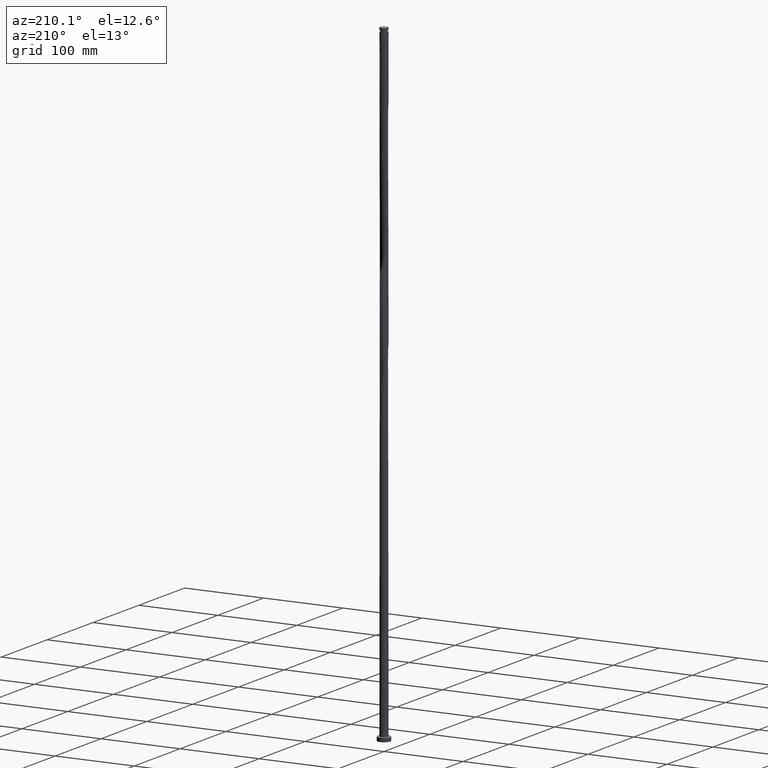
[diagram: clean part render]
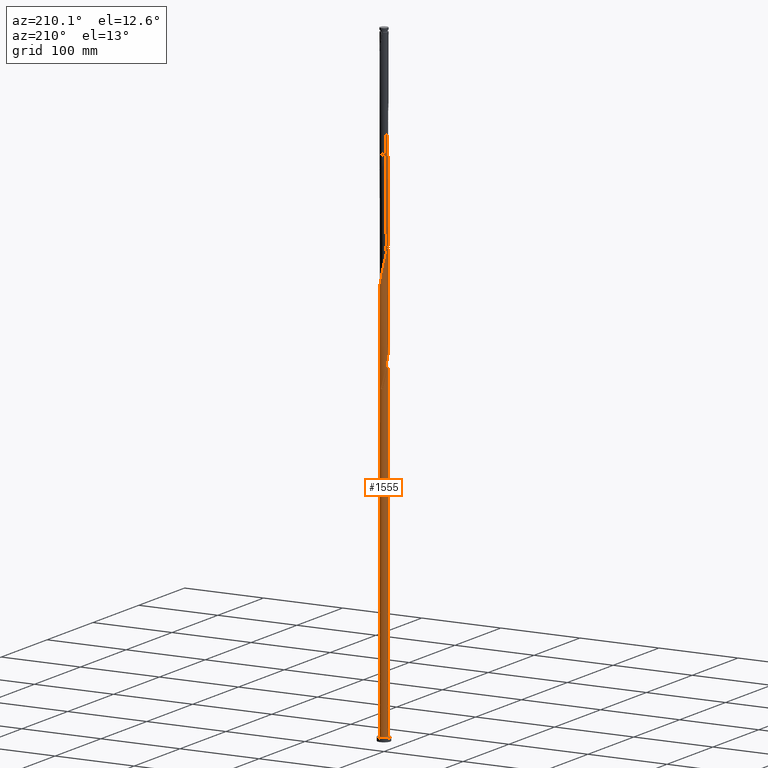
[diagram: same view with one face highlighted and labeled with its STEP entity id]
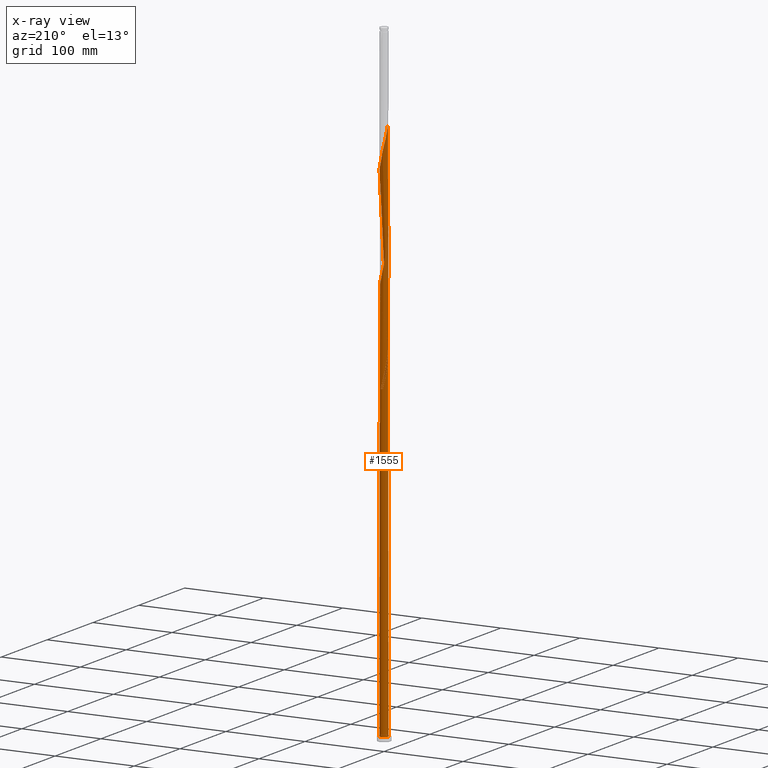
[diagram: x-ray of the same camera — body ghosted, the highlighted face saturated]
A machine part, auxiliary view. The second image highlights one B-rep face of the part: STEP entity #1555.
The next image is the same camera in x-ray: the body ghosted, the highlighted face saturated — about 0% of this face is hidden behind the body in this view.
In plain terms, the highlighted cylindrical surface (bore or boss wall) has radius 5 mm, axis along (-0, -0, -1).
Its self-contained STEP definition (entity closure, byte-faithful):
#1 = CARTESIAN_POINT ( 'NONE',  ( -4.326208788009319406, -2.540781730161819851, 435.7663064840257334 ) ) ;
#4 = ORIENTED_EDGE ( 'NONE', *, *, #314, .F. ) ;
#27 = EDGE_LOOP ( 'NONE', ( #4, #275, #1012, #565, #881, #94, #1952, #784, #961 ) ) ;
#38 = CARTESIAN_POINT ( 'NONE',  ( 4.685403866801942208, 1.794058216092929925, 498.9242012208678148 ) ) ;
#42 = AXIS2_PLACEMENT_3D ( 'NONE', #1914, #1886, #343 ) ;
#48 = CARTESIAN_POINT ( 'NONE',  ( -2.174848182303465549, 4.521248683904087073, 534.0119205191134597 ) ) ;
#57 = CARTESIAN_POINT ( 'NONE',  ( -4.493269221328098695, 2.232081087783042150, 681.3803415717451344 ) ) ;
#60 = CARTESIAN_POINT ( 'NONE',  ( 2.224457399218039644, 4.477922428879734795, 514.7136749050783919 ) ) ;
#67 = CARTESIAN_POINT ( 'NONE',  ( -5.000000000000006217, 0.1192366712258737388, 690.6571740718139836 ) ) ;
#73 = DIRECTION ( 'NONE',  ( -1.000000000000000000, 0.000000000000000000, 0.000000000000000000 ) ) ;
#82 = CARTESIAN_POINT ( 'NONE',  ( -1.787930597709425973, 4.669400837128302229, 398.9242012208678148 ) ) ;
#87 = CARTESIAN_POINT ( 'NONE',  ( -0.5889618610978690771, 4.982447009647495761, 526.9943766594642511 ) ) ;
#92 = CARTESIAN_POINT ( 'NONE',  ( -2.595508630546284223, 4.293598633609434501, 411.2049029752536171 ) ) ;
#94 = ORIENTED_EDGE ( 'NONE', *, *, #1629, .F. ) ;
#97 = CARTESIAN_POINT ( 'NONE',  ( 5.014065512039776351, 0.1755030448352140060, 625.2399906945522616 ) ) ;
#107 = CIRCLE ( 'NONE', #42, 5.000000000000000888 ) ;
#108 = CARTESIAN_POINT ( 'NONE',  ( 4.326208788009319406, 2.540781730161819851, 635.7663064840260176 ) ) ;
#115 = CARTESIAN_POINT ( 'NONE',  ( -4.505806327405622369, 2.167419973127374888, 423.4856047296397037 ) ) ;
#119 = CARTESIAN_POINT ( 'NONE',  ( 0.9949874371066286249, -4.900000000000004796, 595.4154292910430968 ) ) ;
#131 = CARTESIAN_POINT ( 'NONE',  ( 4.646322289566820807, -1.847075846161880142, 616.4680608699907225 ) ) ;
#140 = CARTESIAN_POINT ( 'NONE',  ( -4.646322289566820807, 1.847075846161880142, 416.4680608699906088 ) ) ;
#163 = CARTESIAN_POINT ( 'NONE',  ( -4.801098604423229332, -1.396227843371344424, 430.5031485892887417 ) ) ;
#177 = CARTESIAN_POINT ( 'NONE',  ( -4.974567045559866507, 0.6521786465401343547, 421.7312187647275437 ) ) ;
#186 = CARTESIAN_POINT ( 'NONE',  ( 0.5889618610978697433, -4.982447009647495761, 460.3277099927977929 ) ) ;
#215 = CARTESIAN_POINT ( 'NONE',  ( -4.916793342044517345, -0.9983974706497563689, 562.0820959577100666 ) ) ;
#225 = CARTESIAN_POINT ( 'NONE',  ( -4.278933817449795285, 2.586643652667409476, 679.6259556068326901 ) ) ;
#231 = CARTESIAN_POINT ( 'NONE',  ( 4.326208788009319406, 2.540781730161819851, 502.4329731506923622 ) ) ;
#239 = CARTESIAN_POINT ( 'NONE',  ( -4.087607399536871355, -2.879490536058679773, 570.8540257822712647 ) ) ;
#250 = CARTESIAN_POINT ( 'NONE',  ( -4.801098604423229332, -1.396227843371344424, 563.8364819226223972 ) ) ;
#265 = DIRECTION ( 'NONE',  ( 0.000000000000000000, 0.000000000000000000, 1.000000000000000000 ) ) ;
#269 = CARTESIAN_POINT ( 'NONE',  ( 0.1749036129582310084, -4.996939936218388389, 591.9066573612187767 ) ) ;
#274 = CARTESIAN_POINT ( 'NONE',  ( -3.525055956709933991, 3.570102908858083790, 407.6961310454291834 ) ) ;
#275 = ORIENTED_EDGE ( 'NONE', *, *, #345, .F. ) ;
#278 = CARTESIAN_POINT ( 'NONE',  ( 4.493269221328098695, -2.232081087783042594, 614.7136749050782782 ) ) ;
#293 = CARTESIAN_POINT ( 'NONE',  ( 0.1749036129582320631, 4.996939936218380396, 398.9242012208677579 ) ) ;
#297 = CARTESIAN_POINT ( 'NONE',  ( 3.525055956709933547, -3.570102908858086010, 607.6961310454292970 ) ) ;
#301 = CARTESIAN_POINT ( 'NONE',  ( -5.000000000000007994, -4.329326641535641108E-16, 691.1634970902542818 ) ) ;
#314 = EDGE_CURVE ( 'NONE', #340, #1834, #1340, .T. ) ;
#320 = CARTESIAN_POINT ( 'NONE',  ( 3.557909197405971558, 3.513016103437910154, 641.0294643787625546 ) ) ;
#331 = CARTESIAN_POINT ( 'NONE',  ( 0.6499511258119768931, 4.957576377026967407, 655.0645520980607444 ) ) ;
#337 = CARTESIAN_POINT ( 'NONE',  ( -3.266812383747518478, -3.807832864920281501, 442.7838503436748852 ) ) ;
#340 = VERTEX_POINT ( 'NONE', #301 ) ;
#343 = DIRECTION ( 'NONE',  ( 0.000000000000000000, 1.000000000000000000, -3.330669073875468990E-14 ) ) ;
#345 = EDGE_CURVE ( 'NONE', #442, #340, #692, .T. ) ;
#349 = CARTESIAN_POINT ( 'NONE',  ( 2.532103672393926530, -4.311432591639266398, 469.0996398173591615 ) ) ;
#365 = CARTESIAN_POINT ( 'NONE',  ( 0.9949874371066294021, 4.899999999999997691, 395.4154292910432105 ) ) ;
#381 = CARTESIAN_POINT ( 'NONE',  ( 4.974567045559866507, -0.6521786465401351318, 488.3978854313942293 ) ) ;
#387 = CARTESIAN_POINT ( 'NONE',  ( -0.5889618610978690771, 4.982447009647495761, 660.3277099927976224 ) ) ;
#390 = CARTESIAN_POINT ( 'NONE',  ( 1.060747616442546004, 4.903719891264652020, 519.9768327998151562 ) ) ;
#393 = CARTESIAN_POINT ( 'NONE',  ( 4.505806327405629474, 2.167419973127374000, 500.6785871857800885 ) ) ;
#402 = CARTESIAN_POINT ( 'NONE',  ( -5.000000000000007994, -4.329326641535641108E-16, 691.1634970902542818 ) ) ;
#405 = CARTESIAN_POINT ( 'NONE',  ( -1.787930597709425973, 4.669400837128302229, 532.2575345542012428 ) ) ;
#408 = CARTESIAN_POINT ( 'NONE',  ( 4.994316278799820985, -0.2383378008524582869, 490.1522713963064461 ) ) ;
#417 = CARTESIAN_POINT ( 'NONE',  ( -2.595508630546288664, -4.293598633609439830, 579.6259556068326901 ) ) ;
#425 = CARTESIAN_POINT ( 'NONE',  ( -4.064598413571493651, 2.941206217551778135, 677.8715696419202459 ) ) ;
#431 = CARTESIAN_POINT ( 'NONE',  ( -3.207207559597160973, 3.835859704116262758, 405.9417450805170802 ) ) ;
#435 = CARTESIAN_POINT ( 'NONE',  ( -1.060747616442545338, -4.903719891264651132, 586.6434994664817850 ) ) ;
#441 = CARTESIAN_POINT ( 'NONE',  ( -0.6499511258119736734, 4.957576377026959413, 402.4329731506923054 ) ) ;
#442 = VERTEX_POINT ( 'NONE', #2134 ) ;
#446 = CARTESIAN_POINT ( 'NONE',  ( 4.685403866801942208, 1.794058216092929925, 632.2575345542013565 ) ) ;
#469 = CARTESIAN_POINT ( 'NONE',  ( 2.889359162484387511, -4.101616499374442171, 604.1873591156046359 ) ) ;
#473 = DIRECTION ( 'NONE',  ( -0.000000000000000000, -0.000000000000000000, -1.000000000000000000 ) ) ;
#480 = CARTESIAN_POINT ( 'NONE',  ( 4.974567045559866507, -0.6521786465401351318, 621.7312187647276005 ) ) ;
#491 = CARTESIAN_POINT ( 'NONE',  ( 2.224457399218039644, 4.477922428879734795, 648.0470082384116495 ) ) ;
#496 = CARTESIAN_POINT ( 'NONE',  ( -4.505806327405627698, -2.167419973127376664, 434.0119205191134029 ) ) ;
#507 = CARTESIAN_POINT ( 'NONE',  ( 3.207207559597160973, -3.835859704116262758, 472.6084117471835384 ) ) ;
#539 = CARTESIAN_POINT ( 'NONE',  ( 4.278933817449793509, -2.586643652667412141, 479.6259556068327470 ) ) ;
#549 = CARTESIAN_POINT ( 'NONE',  ( 3.557909197405971558, 3.513016103437910154, 507.6961310454291834 ) ) ;
#565 = ORIENTED_EDGE ( 'NONE', *, *, #1867, .T. ) ;
#567 = CARTESIAN_POINT ( 'NONE',  ( -4.799375357805543807, 1.462070604540717467, 551.5557801682363106 ) ) ;
#570 = CARTESIAN_POINT ( 'NONE',  ( 4.646322289566820807, -1.847075846161880142, 483.1347275366572944 ) ) ;
#574 = DIRECTION ( 'NONE',  ( -0.000000000000000000, -0.000000000000000000, -1.000000000000000000 ) ) ;
#576 = CARTESIAN_POINT ( 'NONE',  ( -3.207207559597160973, 3.835859704116262758, 672.6084117471837089 ) ) ;
#579 = CARTESIAN_POINT ( 'NONE',  ( 0.2391546351814080318, 5.011432862789284570, 523.4856047296397037 ) ) ;
#586 = CARTESIAN_POINT ( 'NONE',  ( 0.9949874371066294021, 4.899999999999997691, 395.4154292910432105 ) ) ;
#591 = CARTESIAN_POINT ( 'NONE',  ( 1.853406167889789069, 4.662246224150032425, 516.4680608699906088 ) ) ;
#598 = DIRECTION ( 'NONE',  ( 1.000000000000000000, 0.000000000000000000, 0.000000000000000000 ) ) ;
#602 = CARTESIAN_POINT ( 'NONE',  ( -3.525055956709933991, 3.570102908858083790, 541.0294643787625546 ) ) ;
#610 = CIRCLE ( 'NONE', #1678, 5.000000000000000888 ) ;
#617 = EDGE_CURVE ( 'NONE', #1575, #1720, #610, .T. ) ;
#627 = AXIS2_PLACEMENT_3D ( 'NONE', #893, #1803, #73 ) ;
#631 = CARTESIAN_POINT ( 'NONE',  ( -1.060747616442540675, 4.903719891264643138, 404.1873591156045222 ) ) ;
#645 = CARTESIAN_POINT ( 'NONE',  ( -1.457076892166166315, -4.782983057707340890, 584.8891135015695681 ) ) ;
#652 = CARTESIAN_POINT ( 'NONE',  ( -4.278933817449795285, 2.586643652667409476, 412.9592889401661751 ) ) ;
#662 = CARTESIAN_POINT ( 'NONE',  ( 2.889359162484387511, -4.101616499374442171, 470.8540257822714921 ) ) ;
#692 =( BOUNDED_CURVE ( )  B_SPLINE_CURVE ( 2, ( #1728, #1556, #836, #2093, #163, #847, #496, #1, #2053, #1762, #711, #337, #1542, #1408, #877, #1388, #1399, #2235, #1880, #2064, #2079, #186, #1716, #1532, #2225, #1572, #349, #662, #507, #1197, #1751, #2128, #539, #1774, #570, #2115, #754, #381, #408, #899, #1596, #1258, #1957, #38, #393, #231, #724, #919, #549, #1246, #910, #1782, #60, #591, #1427, #390, #730, #579, #2165, #87, #1088, #1820, #405, #48, #1966, #2156, #954, #602, #1650, #751, #775, #739, #2136, #567, #1280, #1268, #1099, #1471, #1806, #215, #250, #907, #1451, #1606, #239, #929, #1974, #2123, #1253, #417, #941, #1639, #645, #435, #2186, #985, #269, #1686, #119, #1131, #1708, #1695, #2198, #469, #1874, #297, #996, #2208, #1350, #278, #131, #1525, #1509, #480, #1661, #97, #1480, #2176, #1311, #446, #1671, #108, #869, #854, #320, #1564, #894, #1588, #491, #1538, #1369, #1382, #331, #1548, #2241, #387, #2120, #2144, #1084, #1951, #1792, #1983, #576, #1239, #1107, #425, #225, #57, #1287, #1265, #1615, #1634, #1624, #67, #402 ),
 .UNSPECIFIED., .F., .T. ) 
 B_SPLINE_CURVE_WITH_KNOTS ( ( 3, 2, 2, 2, 2, 2, 2, 2, 2, 2, 2, 2, 2, 2, 2, 2, 2, 2, 2, 2, 2, 2, 2, 2, 2, 2, 2, 2, 2, 2, 2, 2, 2, 2, 2, 2, 2, 2, 2, 2, 2, 2, 2, 2, 2, 2, 2, 2, 2, 2, 2, 2, 2, 2, 2, 2, 2, 2, 2, 2, 2, 2, 2, 2, 2, 2, 2, 2, 2, 2, 2, 2, 2, 2, 2, 2, 2, 3 ),
 ( 0.05452958095159531754, 0.05921052631578949121, 0.06578947368421050879, 0.07236842105263152636, 0.07894736842105265495, 0.08552631578947367252, 0.09210526315789469010, 0.09868421052631581869, 0.1052631578947368363, 0.1118421052631578538, 0.1184210526315789824, 0.1250000000000000000, 0.1315789473684210176, 0.1381578947368421462, 0.1447368421052631637, 0.1513157894736841813, 0.1578947368421053099, 0.1644736842105263275, 0.1710526315789473450, 0.1776315789473684736, 0.1842105263157894912, 0.1907894736842105088, 0.1973684210526315264, 0.2039473684210526550, 0.2105263157894736725, 0.2171052631578946901, 0.2236842105263158187, 0.2302631578947368363, 0.2368421052631578538, 0.2434210526315789824, 0.2500000000000000000, 0.2565789473684210176, 0.2631578947368421462, 0.2697368421052631637, 0.2763157894736841813, 0.2828947368421053099, 0.2894736842105263275, 0.2960526315789473450, 0.3026315789473684736, 0.3092105263157894912, 0.3157894736842105088, 0.3223684210526315264, 0.3289473684210526550, 0.3355263157894736725, 0.3421052631578946901, 0.3486842105263158187, 0.3552631578947368363, 0.3618421052631578538, 0.3684210526315789824, 0.3750000000000000000, 0.3815789473684210176, 0.3881578947368421462, 0.3947368421052631637, 0.4013157894736841813, 0.4078947368421053099, 0.4144736842105263275, 0.4210526315789473450, 0.4276315789473684736, 0.4342105263157894912, 0.4407894736842105088, 0.4473684210526315264, 0.4539473684210526550, 0.4605263157894736725, 0.4671052631578946901, 0.4736842105263158187, 0.4802631578947368363, 0.4868421052631578538, 0.4934210526315789824, 0.5000000000000000000, 0.5065789473684210176, 0.5131578947368420351, 0.5197368421052631637, 0.5263157894736842923, 0.5328947368421053099, 0.5394736842105263275, 0.5460526315789473450, 0.5526315789473683626, 0.5545295809515948804 ),
 .UNSPECIFIED. ) 
 CURVE ( )  GEOMETRIC_REPRESENTATION_ITEM ( )  RATIONAL_B_SPLINE_CURVE ( ( 0.9078162034606549469, 0.9068816855934618282, 0.9090909090909837786, 0.9059859027334105086, 0.9090909090909837786, 0.9059859027334105086, 0.9090909090909837786, 0.9059859027334105086, 0.9090909090909837786, 0.9059859027334105086, 0.9090909090909837786, 0.9059859027334105086, 0.9090909090909837786, 0.9059859027334105086, 0.9090909090909837786, 0.9059859027334105086, 0.9090909090909837786, 0.9059859027334105086, 0.9090909090909837786, 0.9059859027334105086, 0.9090909090909837786, 0.9059859027334105086, 0.9090909090909837786, 0.9059859027334105086, 0.9090909090909837786, 0.9059859027334105086, 0.9090909090909837786, 0.9059859027334105086, 0.9090909090909837786, 0.9059859027334105086, 0.9090909090909837786, 0.9059859027334105086, 0.9090909090909837786, 0.9059859027334105086, 0.9090909090909837786, 0.9059859027334105086, 0.9090909090909837786, 0.9059859027334105086, 0.9090909090909837786, 0.9059859027334105086, 0.9090909090909837786, 0.9059859027334105086, 0.9090909090909837786, 0.9059859027334105086, 0.9090909090909837786, 0.9059859027334105086, 0.9090909090909837786, 0.9059859027334105086, 0.9090909090909837786, 0.9059859027334105086, 0.9090909090909837786, 0.9059859027334105086, 0.9090909090909837786, 0.9059859027334105086, 0.9090909090909837786, 0.9059859027334105086, 0.9090909090909837786, 0.9059859027334105086, 0.9090909090909837786, 0.9059859027334105086, 0.9090909090909837786, 0.9059859027334105086, 0.9090909090909837786, 0.9059859027334105086, 0.9090909090909837786, 0.9059859027334105086, 0.9090909090909837786, 0.9059859027334105086, 0.9090909090909837786, 0.9059859027334105086, 0.9090909090909837786, 0.9059859027334105086, 0.9090909090909837786, 0.9059859027334105086, 0.9090909090909837786, 0.9059859027334105086, 0.9090909090909837786, 0.9059859027334105086, 0.9090909090909837786, 0.9059859027334105086, 0.9090909090909837786, 0.9059859027334105086, 0.9090909090909837786, 0.9059859027334105086, 0.9090909090909837786, 0.9059859027334105086, 0.9090909090909837786, 0.9059859027334105086, 0.9090909090909837786, 0.9059859027334105086, 0.9090909090909837786, 0.9059859027334105086, 0.9090909090909837786, 0.9059859027334105086, 0.9090909090909837786, 0.9059859027334105086, 0.9090909090909837786, 0.9059859027334105086, 0.9090909090909837786, 0.9059859027334105086, 0.9090909090909837786, 0.9059859027334105086, 0.9090909090909837786, 0.9059859027334105086, 0.9090909090909837786, 0.9059859027334105086, 0.9090909090909837786, 0.9059859027334105086, 0.9090909090909837786, 0.9059859027334105086, 0.9090909090909837786, 0.9059859027334105086, 0.9090909090909837786, 0.9059859027334105086, 0.9090909090909837786, 0.9059859027334105086, 0.9090909090909837786, 0.9059859027334105086, 0.9090909090909837786, 0.9059859027334105086, 0.9090909090909837786, 0.9059859027334105086, 0.9090909090909837786, 0.9059859027334105086, 0.9090909090909837786, 0.9059859027334105086, 0.9090909090909837786, 0.9059859027334105086, 0.9090909090909837786, 0.9059859027334105086, 0.9090909090909837786, 0.9059859027334105086, 0.9090909090909837786, 0.9059859027334105086, 0.9090909090909837786, 0.9059859027334105086, 0.9090909090909837786, 0.9059859027334105086, 0.9090909090909837786, 0.9059859027334105086, 0.9090909090909837786, 0.9059859027334105086, 0.9090909090909837786, 0.9059859027334105086, 0.9090909090909837786, 0.9059859027334105086, 0.9090909090909837786, 0.9059859027334105086, 0.9090909090909837786, 0.9059859027334105086, 0.9090909090909837786, 0.9059859027334105086, 0.9090909090909837786, 0.9081951262309326811, 0.9078162034606551689 ) ) 
 REPRESENTATION_ITEM ( '' )  );
#711 = CARTESIAN_POINT ( 'NONE',  ( -3.557909197405970669, -3.513016103437910598, 441.0294643787626683 ) ) ;
#724 = CARTESIAN_POINT ( 'NONE',  ( 4.087607399536870467, 2.879490536058681105, 504.1873591156046359 ) ) ;
#730 = CARTESIAN_POINT ( 'NONE',  ( 0.6499511258119768931, 4.957576377026967407, 521.7312187647274868 ) ) ;
#739 = CARTESIAN_POINT ( 'NONE',  ( -4.493269221328098695, 2.232081087783042150, 548.0470082384118768 ) ) ;
#751 = CARTESIAN_POINT ( 'NONE',  ( -4.064598413571493651, 2.941206217551778135, 544.5382363085872157 ) ) ;
#754 = CARTESIAN_POINT ( 'NONE',  ( 4.886971201682704269, -1.057124625540427854, 486.6434994664817850 ) ) ;
#767 = VERTEX_POINT ( 'NONE', #2164 ) ;
#771 = CARTESIAN_POINT ( 'NONE',  ( 0.000000000000000000, 0.000000000000000000, 5.000000000000000000 ) ) ;
#775 = CARTESIAN_POINT ( 'NONE',  ( -4.278933817449795285, 2.586643652667409476, 546.2926222734995463 ) ) ;
#784 = ORIENTED_EDGE ( 'NONE', *, *, #1429, .T. ) ;
#793 = CARTESIAN_POINT ( 'NONE',  ( -4.916793342044511128, 0.9983974706497559248, 428.7487626243765817 ) ) ;
#802 = CARTESIAN_POINT ( 'NONE',  ( -4.326208788009311412, 2.540781730161816743, 421.7312187647274868 ) ) ;
#806 = CARTESIAN_POINT ( 'NONE',  ( 0.000000000000000000, 0.000000000000000000, 5.000000000000000000 ) ) ;
#836 = CARTESIAN_POINT ( 'NONE',  ( -4.965429427042145960, -0.5869502577424863254, 426.9943766594643648 ) ) ;
#847 = CARTESIAN_POINT ( 'NONE',  ( -4.685403866801941319, -1.794058216092933034, 432.2575345542011860 ) ) ;
#854 = CARTESIAN_POINT ( 'NONE',  ( 3.849006011064425525, 3.218199341955538806, 639.2750784138502240 ) ) ;
#869 = CARTESIAN_POINT ( 'NONE',  ( 4.087607399536870467, 2.879490536058681105, 637.5206924489378935 ) ) ;
#877 = CARTESIAN_POINT ( 'NONE',  ( -2.224457399218039644, -4.477922428879735683, 448.0470082384116495 ) ) ;
#881 = ORIENTED_EDGE ( 'NONE', *, *, #617, .T. ) ;
#893 = CARTESIAN_POINT ( 'NONE',  ( 0.000000000000000000, 0.000000000000000000, 800.0000000000000000 ) ) ;
#894 = CARTESIAN_POINT ( 'NONE',  ( 2.931160507146907346, 4.050715749264861110, 644.5382363085872157 ) ) ;
#899 = CARTESIAN_POINT ( 'NONE',  ( 5.014065512039776351, 0.1755030448352140060, 491.9066573612187199 ) ) ;
#907 = CARTESIAN_POINT ( 'NONE',  ( -4.685403866801941319, -1.794058216092933034, 565.5908678875346141 ) ) ;
#910 = CARTESIAN_POINT ( 'NONE',  ( 2.931160507146907346, 4.050715749264861110, 511.2049029752539013 ) ) ;
#919 = CARTESIAN_POINT ( 'NONE',  ( 3.849006011064425525, 3.218199341955538806, 505.9417450805169096 ) ) ;
#929 = CARTESIAN_POINT ( 'NONE',  ( -3.849006011064424637, -3.218199341955541026, 572.6084117471838226 ) ) ;
#941 = CARTESIAN_POINT ( 'NONE',  ( -2.224457399218039644, -4.477922428879735683, 581.3803415717449070 ) ) ;
#950 = CARTESIAN_POINT ( 'NONE',  ( -5.000000000000000000, 3.911322689939121366E-15, 433.0006948251653967 ) ) ;
#954 = CARTESIAN_POINT ( 'NONE',  ( -3.207207559597160973, 3.835859704116262758, 539.2750784138502240 ) ) ;
#959 = CARTESIAN_POINT ( 'NONE',  ( -4.801098604423221339, 1.396227843371343535, 426.9943766594641943 ) ) ;
#961 = ORIENTED_EDGE ( 'NONE', *, *, #1842, .F. ) ;
#985 = CARTESIAN_POINT ( 'NONE',  ( -0.2391546351814095583, -5.011432862789284570, 590.1522713963065598 ) ) ;
#996 = CARTESIAN_POINT ( 'NONE',  ( 3.794827185140713599, -3.255654563204931407, 609.4505170103415139 ) ) ;
#1002 = CARTESIAN_POINT ( 'NONE',  ( -4.886971201682706045, 1.057124625540425855, 419.9768327998151562 ) ) ;
#1012 = ORIENTED_EDGE ( 'NONE', *, *, #1629, .T. ) ;
#1020 = VECTOR ( 'NONE', #473, 1000.000000000000000 ) ;
#1084 = CARTESIAN_POINT ( 'NONE',  ( -1.787930597709425973, 4.669400837128302229, 665.5908678875342730 ) ) ;
#1088 = CARTESIAN_POINT ( 'NONE',  ( -0.9949874371066279588, 4.900000000000004796, 528.7487626243765817 ) ) ;
#1099 = CARTESIAN_POINT ( 'NONE',  ( -4.994316278799820985, 0.2383378008524589531, 556.8189380629730749 ) ) ;
#1107 = CARTESIAN_POINT ( 'NONE',  ( -3.794827185140713155, 3.255654563204930518, 676.1171836770081427 ) ) ;
#1117 = CARTESIAN_POINT ( 'NONE',  ( -1.401013013115386840, 4.817552990352518272, 397.1698152559557116 ) ) ;
#1126 = CARTESIAN_POINT ( 'NONE',  ( -2.224457399218035203, 4.477922428879730354, 409.4505170103414002 ) ) ;
#1131 = CARTESIAN_POINT ( 'NONE',  ( 1.401013013115385286, -4.817552990352518272, 597.1698152559555410 ) ) ;
#1136 = CARTESIAN_POINT ( 'NONE',  ( -0.9949874371066275147, 4.900000000000004796, 395.4154292910432105 ) ) ;
#1197 = CARTESIAN_POINT ( 'NONE',  ( 3.525055956709933547, -3.570102908858086010, 474.3627977120959258 ) ) ;
#1239 = CARTESIAN_POINT ( 'NONE',  ( -3.525055956709933991, 3.570102908858083790, 674.3627977120958121 ) ) ;
#1246 = CARTESIAN_POINT ( 'NONE',  ( 3.266812383747518922, 3.807832864920281501, 509.4505170103416276 ) ) ;
#1253 = CARTESIAN_POINT ( 'NONE',  ( -2.931160507146904681, -4.050715749264861110, 577.8715696419204733 ) ) ;
#1258 = CARTESIAN_POINT ( 'NONE',  ( 4.916793342044517345, 0.9983974706497559248, 495.4154292910433810 ) ) ;
#1265 = CARTESIAN_POINT ( 'NONE',  ( -4.799375357805543807, 1.462070604540717467, 684.8891135015697955 ) ) ;
#1268 = CARTESIAN_POINT ( 'NONE',  ( -4.974567045559866507, 0.6521786465401343547, 555.0645520980608580 ) ) ;
#1280 = CARTESIAN_POINT ( 'NONE',  ( -4.886971201682706045, 1.057124625540425855, 553.3101661331484138 ) ) ;
#1287 = CARTESIAN_POINT ( 'NONE',  ( -4.646322289566820807, 1.847075846161880142, 683.1347275366572376 ) ) ;
#1296 = CARTESIAN_POINT ( 'NONE',  ( -2.889359162484388399, 4.101616499374442171, 404.1873591156047496 ) ) ;
#1306 = CARTESIAN_POINT ( 'NONE',  ( -3.266812383747513149, 3.807832864920276172, 414.7136749050783919 ) ) ;
#1311 = CARTESIAN_POINT ( 'NONE',  ( 4.801098604423229332, 1.396227843371344424, 630.5031485892891396 ) ) ;
#1334 = DIRECTION ( 'NONE',  ( 1.000000000000000000, 0.000000000000000000, 0.000000000000000000 ) ) ;
#1340 = LINE ( 'NONE', #2030, #1020 ) ;
#1350 = CARTESIAN_POINT ( 'NONE',  ( 4.278933817449793509, -2.586643652667412141, 612.9592889401660614 ) ) ;
#1357 = CARTESIAN_POINT ( 'NONE',  ( -4.493269221328098695, 2.232081087783042150, 414.7136749050783351 ) ) ;
#1368 = FACE_OUTER_BOUND ( 'NONE', #27, .T. ) ;
#1369 = CARTESIAN_POINT ( 'NONE',  ( 1.457076892166168980, 4.782983057707340890, 651.5557801682363106 ) ) ;
#1382 = CARTESIAN_POINT ( 'NONE',  ( 1.060747616442546004, 4.903719891264652020, 653.3101661331487549 ) ) ;
#1388 = CARTESIAN_POINT ( 'NONE',  ( -1.853406167889788625, -4.662246224150031537, 449.8013942033239800 ) ) ;
#1399 = CARTESIAN_POINT ( 'NONE',  ( -1.457076892166166315, -4.782983057707340890, 451.5557801682361969 ) ) ;
#1408 = CARTESIAN_POINT ( 'NONE',  ( -2.595508630546288664, -4.293598633609439830, 446.2926222734993758 ) ) ;
#1427 = CARTESIAN_POINT ( 'NONE',  ( 1.457076892166168980, 4.782983057707340890, 518.2224468349028257 ) ) ;
#1429 = EDGE_CURVE ( 'NONE', #767, #1559, #107, .T. ) ;
#1451 = CARTESIAN_POINT ( 'NONE',  ( -4.505806327405627698, -2.167419973127376664, 567.3452538524464899 ) ) ;
#1455 = CARTESIAN_POINT ( 'NONE',  ( -1.853406167889784628, 4.662246224150025320, 407.6961310454291265 ) ) ;
#1466 = CARTESIAN_POINT ( 'NONE',  ( -4.999999999999998224, 0.2944932087671874310, 431.7501677109801221 ) ) ;
#1470 = AXIS2_PLACEMENT_3D ( 'NONE', #771, #265, #598 ) ;
#1471 = CARTESIAN_POINT ( 'NONE',  ( -5.014065512039776351, -0.1755030448352166428, 558.5733240278854055 ) ) ;
#1480 = CARTESIAN_POINT ( 'NONE',  ( 4.965429427042145960, 0.5869502577424847711, 626.9943766594642511 ) ) ;
#1489 = DIRECTION ( 'NONE',  ( 0.000000000000000000, 0.000000000000000000, 1.000000000000000000 ) ) ;
#1496 = CARTESIAN_POINT ( 'NONE',  ( -4.087607399536863362, 2.879490536058676664, 419.9768327998150994 ) ) ;
#1509 = CARTESIAN_POINT ( 'NONE',  ( 4.886971201682704269, -1.057124625540427854, 619.9768327998151562 ) ) ;
#1517 = CARTESIAN_POINT ( 'NONE',  ( -5.000000000000007994, -2.493094997022248418E-15, 424.4968304235876531 ) ) ;
#1525 = CARTESIAN_POINT ( 'NONE',  ( 4.799375357805542919, -1.462070604540720353, 618.2224468349030531 ) ) ;
#1532 = CARTESIAN_POINT ( 'NONE',  ( 1.401013013115385286, -4.817552990352518272, 463.8364819226222266 ) ) ;
#1538 = CARTESIAN_POINT ( 'NONE',  ( 1.853406167889789069, 4.662246224150032425, 649.8013942033239800 ) ) ;
#1542 = CARTESIAN_POINT ( 'NONE',  ( -2.931160507146904681, -4.050715749264861110, 444.5382363085871020 ) ) ;
#1548 = CARTESIAN_POINT ( 'NONE',  ( 0.2391546351814080318, 5.011432862789284570, 656.8189380629731886 ) ) ;
#1555 = ADVANCED_FACE ( 'NONE', ( #1368 ), #2058, .T. ) ;
#1556 = CARTESIAN_POINT ( 'NONE',  ( -5.000000000000010658, -0.2944932087671580656, 425.7473575377730413 ) ) ;
#1559 = VERTEX_POINT ( 'NONE', #365 ) ;
#1564 = CARTESIAN_POINT ( 'NONE',  ( 3.266812383747518922, 3.807832864920281501, 642.7838503436747715 ) ) ;
#1572 = CARTESIAN_POINT ( 'NONE',  ( 2.174848182303464661, -4.521248683904088850, 467.3452538524467172 ) ) ;
#1575 = VERTEX_POINT ( 'NONE', #2133 ) ;
#1588 = CARTESIAN_POINT ( 'NONE',  ( 2.595508630546292217, 4.293598633609438942, 646.2926222734995463 ) ) ;
#1596 = CARTESIAN_POINT ( 'NONE',  ( 4.965429427042145960, 0.5869502577424847711, 493.6610433261309936 ) ) ;
#1606 = CARTESIAN_POINT ( 'NONE',  ( -4.326208788009319406, -2.540781730161819851, 569.0996398173590478 ) ) ;
#1615 = CARTESIAN_POINT ( 'NONE',  ( -4.886971201682706045, 1.057124625540425855, 686.6434994664818987 ) ) ;
#1624 = CARTESIAN_POINT ( 'NONE',  ( -4.994316278799820985, 0.2383378008524589531, 690.1522713963064461 ) ) ;
#1629 = EDGE_CURVE ( 'NONE', #442, #1720, #1815, .T. ) ;
#1632 =( BOUNDED_CURVE ( )  B_SPLINE_CURVE ( 2, ( #1136, #1117, #82, #2161, #1841, #1296, #431, #274, #2033, #1742, #652, #1357, #140, #1894, #1002, #177, #1912, #2227, #1517 ),
 .UNSPECIFIED., .F., .T. ) 
 B_SPLINE_CURVE_WITH_KNOTS ( ( 3, 2, 2, 2, 2, 2, 2, 2, 2, 3 ),
 ( 0.000000000000000000, 0.006578947368421017572, 0.01315789473684214617, 0.01973684210526316374, 0.02631578947368418131, 0.03289473684210530990, 0.03947368421052632748, 0.04605263157894734505, 0.05263157894736847364, 0.05452958095159531754 ),
 .UNSPECIFIED. ) 
 CURVE ( )  GEOMETRIC_REPRESENTATION_ITEM ( )  RATIONAL_B_SPLINE_CURVE ( ( 0.9090909090909837786, 0.9059859027334105086, 0.9090909090909837786, 0.9059859027334105086, 0.9090909090909837786, 0.9059859027334105086, 0.9090909090909837786, 0.9059859027334105086, 0.9090909090909837786, 0.9059859027334105086, 0.9090909090909837786, 0.9059859027334105086, 0.9090909090909837786, 0.9059859027334105086, 0.9090909090909837786, 0.9059859027334105086, 0.9090909090909837786, 0.9081951262309324591, 0.9078162034606549469 ) ) 
 REPRESENTATION_ITEM ( '' )  );
#1634 = CARTESIAN_POINT ( 'NONE',  ( -4.974567045559866507, 0.6521786465401343547, 688.3978854313942293 ) ) ;
#1639 = CARTESIAN_POINT ( 'NONE',  ( -1.853406167889788625, -4.662246224150031537, 583.1347275366572376 ) ) ;
#1646 = CARTESIAN_POINT ( 'NONE',  ( -4.965429427042139743, 0.5869502577424867695, 430.5031485892888554 ) ) ;
#1650 = CARTESIAN_POINT ( 'NONE',  ( -3.794827185140713155, 3.255654563204930518, 542.7838503436747715 ) ) ;
#1661 = CARTESIAN_POINT ( 'NONE',  ( 4.994316278799820985, -0.2383378008524582869, 623.4856047296398174 ) ) ;
#1671 = CARTESIAN_POINT ( 'NONE',  ( 4.505806327405629474, 2.167419973127374000, 634.0119205191133460 ) ) ;
#1678 = AXIS2_PLACEMENT_3D ( 'NONE', #806, #1489, #1334 ) ;
#1682 = CARTESIAN_POINT ( 'NONE',  ( -4.685403866801933326, 1.794058216092931701, 425.2399906945519206 ) ) ;
#1686 = CARTESIAN_POINT ( 'NONE',  ( 0.5889618610978697433, -4.982447009647495761, 593.6610433261311073 ) ) ;
#1691 = CARTESIAN_POINT ( 'NONE',  ( -5.000000000000000000, 3.911322689939121366E-15, 433.0006948251653967 ) ) ;
#1695 = CARTESIAN_POINT ( 'NONE',  ( 2.174848182303464661, -4.521248683904088850, 600.6785871857800885 ) ) ;
#1708 = CARTESIAN_POINT ( 'NONE',  ( 1.787930597709425751, -4.669400837128304005, 598.9242012208678716 ) ) ;
#1712 =( BOUNDED_CURVE ( )  B_SPLINE_CURVE ( 2, ( #950, #1466, #1646, #793, #959, #1682, #115, #802, #1496, #2002, #1832, #1306, #2194, #92, #1126, #1455, #2151, #631, #441, #2183, #293, #1991, #586 ),
 .UNSPECIFIED., .F., .T. ) 
 B_SPLINE_CURVE_WITH_KNOTS ( ( 3, 2, 2, 2, 2, 2, 2, 2, 2, 2, 2, 3 ),
 ( 0.9295295809515957686, 0.9342105263157894912, 0.9407894736842105088, 0.9473684210526315264, 0.9539473684210526550, 0.9605263157894736725, 0.9671052631578946901, 0.9736842105263158187, 0.9802631578947368363, 0.9868421052631578538, 0.9934210526315789824, 1.000000000000000000 ),
 .UNSPECIFIED. ) 
 CURVE ( )  GEOMETRIC_REPRESENTATION_ITEM ( )  RATIONAL_B_SPLINE_CURVE ( ( 0.9078162034606489517, 0.9068816855934562771, 0.9090909090909780055, 0.9059859027334048465, 0.9090909090909780055, 0.9059859027334048465, 0.9090909090909780055, 0.9059859027334048465, 0.9090909090909780055, 0.9059859027334048465, 0.9090909090909780055, 0.9059859027334048465, 0.9090909090909780055, 0.9059859027334048465, 0.9090909090909780055, 0.9059859027334048465, 0.9090909090909780055, 0.9059859027334048465, 0.9090909090909780055, 0.9059859027334048465, 0.9090909090909780055, 0.9059859027334048465, 0.9090909090909780055 ) ) 
 REPRESENTATION_ITEM ( '' )  );
#1716 = CARTESIAN_POINT ( 'NONE',  ( 0.9949874371066286249, -4.900000000000004796, 462.0820959577100666 ) ) ;
#1720 = VERTEX_POINT ( 'NONE', #1861 ) ;
#1728 = CARTESIAN_POINT ( 'NONE',  ( -5.000000000000007994, -2.493094997022248418E-15, 424.4968304235876531 ) ) ;
#1742 = CARTESIAN_POINT ( 'NONE',  ( -4.064598413571493651, 2.941206217551778135, 411.2049029752537308 ) ) ;
#1751 = CARTESIAN_POINT ( 'NONE',  ( 3.794827185140713599, -3.255654563204931407, 476.1171836770081427 ) ) ;
#1762 = CARTESIAN_POINT ( 'NONE',  ( -3.849006011064424637, -3.218199341955541026, 439.2750784138502809 ) ) ;
#1774 = CARTESIAN_POINT ( 'NONE',  ( 4.493269221328098695, -2.232081087783042594, 481.3803415717449639 ) ) ;
#1782 = CARTESIAN_POINT ( 'NONE',  ( 2.595508630546292217, 4.293598633609438942, 512.9592889401661751 ) ) ;
#1791 = CARTESIAN_POINT ( 'NONE',  ( -5.000000000000000888, 0.000000000000000000, 800.0000000000000000 ) ) ;
#1792 = CARTESIAN_POINT ( 'NONE',  ( -2.532103672393926530, 4.311432591639265510, 669.0996398173590478 ) ) ;
#1803 = DIRECTION ( 'NONE',  ( -0.000000000000000000, -0.000000000000000000, -1.000000000000000000 ) ) ;
#1806 = CARTESIAN_POINT ( 'NONE',  ( -4.965429427042145960, -0.5869502577424863254, 560.3277099927978497 ) ) ;
#1815 = LINE ( 'NONE', #1791, #2231 ) ;
#1820 = CARTESIAN_POINT ( 'NONE',  ( -1.401013013115386840, 4.817552990352518272, 530.5031485892887986 ) ) ;
#1832 = CARTESIAN_POINT ( 'NONE',  ( -3.557909197405964008, 3.513016103437906157, 416.4680608699904951 ) ) ;
#1834 = VERTEX_POINT ( 'NONE', #1691 ) ;
#1841 = CARTESIAN_POINT ( 'NONE',  ( -2.532103672393926530, 4.311432591639265510, 402.4329731506923622 ) ) ;
#1842 = EDGE_CURVE ( 'NONE', #1834, #1559, #1712, .T. ) ;
#1861 = CARTESIAN_POINT ( 'NONE',  ( -5.000000000000000888, 0.000000000000000000, 5.000000000000000000 ) ) ;
#1867 = EDGE_CURVE ( 'NONE', #1720, #1575, #2012, .T. ) ;
#1874 = CARTESIAN_POINT ( 'NONE',  ( 3.207207559597160973, -3.835859704116262758, 605.9417450805167391 ) ) ;
#1880 = CARTESIAN_POINT ( 'NONE',  ( -0.6499511258119761159, -4.957576377026965631, 455.0645520980609149 ) ) ;
#1886 = DIRECTION ( 'NONE',  ( -1.848892746611746419E-29, -2.775557561562893244E-14, -1.000000000000000000 ) ) ;
#1894 = CARTESIAN_POINT ( 'NONE',  ( -4.799375357805543807, 1.462070604540717467, 418.2224468349029394 ) ) ;
#1912 = CARTESIAN_POINT ( 'NONE',  ( -4.994316278799820985, 0.2383378008524589531, 423.4856047296397037 ) ) ;
#1914 = CARTESIAN_POINT ( 'NONE',  ( 0.000000000000000000, 0.000000000000000000, 395.4154292910433242 ) ) ;
#1933 = EDGE_CURVE ( 'NONE', #767, #442, #1632, .T. ) ;
#1951 = CARTESIAN_POINT ( 'NONE',  ( -2.174848182303465549, 4.521248683904087073, 667.3452538524468309 ) ) ;
#1952 = ORIENTED_EDGE ( 'NONE', *, *, #1933, .F. ) ;
#1957 = CARTESIAN_POINT ( 'NONE',  ( 4.801098604423229332, 1.396227843371344424, 497.1698152559555979 ) ) ;
#1966 = CARTESIAN_POINT ( 'NONE',  ( -2.532103672393926530, 4.311432591639265510, 535.7663064840257903 ) ) ;
#1974 = CARTESIAN_POINT ( 'NONE',  ( -3.557909197405970669, -3.513016103437910598, 574.3627977120958121 ) ) ;
#1983 = CARTESIAN_POINT ( 'NONE',  ( -2.889359162484388399, 4.101616499374442171, 670.8540257822713784 ) ) ;
#1991 = CARTESIAN_POINT ( 'NONE',  ( 0.5889618610978712976, 4.982447009647488656, 397.1698152559555410 ) ) ;
#2002 = CARTESIAN_POINT ( 'NONE',  ( -3.849006011064417088, 3.218199341955536585, 418.2224468349029394 ) ) ;
#2012 = CIRCLE ( 'NONE', #1470, 5.000000000000000888 ) ;
#2030 = CARTESIAN_POINT ( 'NONE',  ( -5.000000000000000888, 0.000000000000000000, 800.0000000000000000 ) ) ;
#2033 = CARTESIAN_POINT ( 'NONE',  ( -3.794827185140713155, 3.255654563204930518, 409.4505170103414571 ) ) ;
#2053 = CARTESIAN_POINT ( 'NONE',  ( -4.087607399536871355, -2.879490536058679773, 437.5206924489380071 ) ) ;
#2058 = CYLINDRICAL_SURFACE ( 'NONE', #627, 5.000000000000000888 ) ;
#2064 = CARTESIAN_POINT ( 'NONE',  ( -0.2391546351814095583, -5.011432862789284570, 456.8189380629730749 ) ) ;
#2079 = CARTESIAN_POINT ( 'NONE',  ( 0.1749036129582310084, -4.996939936218388389, 458.5733240278852918 ) ) ;
#2093 = CARTESIAN_POINT ( 'NONE',  ( -4.916793342044517345, -0.9983974706497563689, 428.7487626243766385 ) ) ;
#2115 = CARTESIAN_POINT ( 'NONE',  ( 4.799375357805542919, -1.462070604540720353, 484.8891135015695681 ) ) ;
#2120 = CARTESIAN_POINT ( 'NONE',  ( -0.9949874371066279588, 4.900000000000004796, 662.0820959577098392 ) ) ;
#2123 = CARTESIAN_POINT ( 'NONE',  ( -3.266812383747518478, -3.807832864920281501, 576.1171836770082564 ) ) ;
#2128 = CARTESIAN_POINT ( 'NONE',  ( 4.064598413571493651, -2.941206217551779023, 477.8715696419206438 ) ) ;
#2133 = CARTESIAN_POINT ( 'NONE',  ( 5.000000000000000888, 0.000000000000000000, 5.000000000000000000 ) ) ;
#2134 = CARTESIAN_POINT ( 'NONE',  ( -5.000000000000007994, -2.493094997022248418E-15, 424.4968304235876531 ) ) ;
#2136 = CARTESIAN_POINT ( 'NONE',  ( -4.646322289566820807, 1.847075846161880142, 549.8013942033240937 ) ) ;
#2144 = CARTESIAN_POINT ( 'NONE',  ( -1.401013013115386840, 4.817552990352518272, 663.8364819226225109 ) ) ;
#2151 = CARTESIAN_POINT ( 'NONE',  ( -1.457076892166162319, 4.782983057707333785, 405.9417450805169665 ) ) ;
#2156 = CARTESIAN_POINT ( 'NONE',  ( -2.889359162484388399, 4.101616499374442171, 537.5206924489380071 ) ) ;
#2161 = CARTESIAN_POINT ( 'NONE',  ( -2.174848182303465549, 4.521248683904087073, 400.6785871857801453 ) ) ;
#2164 = CARTESIAN_POINT ( 'NONE',  ( -0.9949874371066275147, 4.900000000000003908, 395.4154292910432105 ) ) ;
#2165 = CARTESIAN_POINT ( 'NONE',  ( -0.1749036129582282328, 4.996939936218388389, 525.2399906945519206 ) ) ;
#2176 = CARTESIAN_POINT ( 'NONE',  ( 4.916793342044517345, 0.9983974706497559248, 628.7487626243766954 ) ) ;
#2183 = CARTESIAN_POINT ( 'NONE',  ( -0.2391546351814064497, 5.011432862789276577, 400.6785871857800885 ) ) ;
#2186 = CARTESIAN_POINT ( 'NONE',  ( -0.6499511258119761159, -4.957576377026965631, 588.3978854313942293 ) ) ;
#2194 = CARTESIAN_POINT ( 'NONE',  ( -2.931160507146898020, 4.050715749264855781, 412.9592889401660614 ) ) ;
#2198 = CARTESIAN_POINT ( 'NONE',  ( 2.532103672393926530, -4.311432591639266398, 602.4329731506923054 ) ) ;
#2208 = CARTESIAN_POINT ( 'NONE',  ( 4.064598413571493651, -2.941206217551779023, 611.2049029752537308 ) ) ;
#2225 = CARTESIAN_POINT ( 'NONE',  ( 1.787930597709425751, -4.669400837128304005, 465.5908678875344435 ) ) ;
#2227 = CARTESIAN_POINT ( 'NONE',  ( -5.000000000000007994, 0.1192366712258512429, 423.9905074051475253 ) ) ;
#2231 = VECTOR ( 'NONE', #574, 1000.000000000000000 ) ;
#2235 = CARTESIAN_POINT ( 'NONE',  ( -1.060747616442545338, -4.903719891264651132, 453.3101661331485843 ) ) ;
#2241 = CARTESIAN_POINT ( 'NONE',  ( -0.1749036129582282328, 4.996939936218388389, 658.5733240278854055 ) ) ;